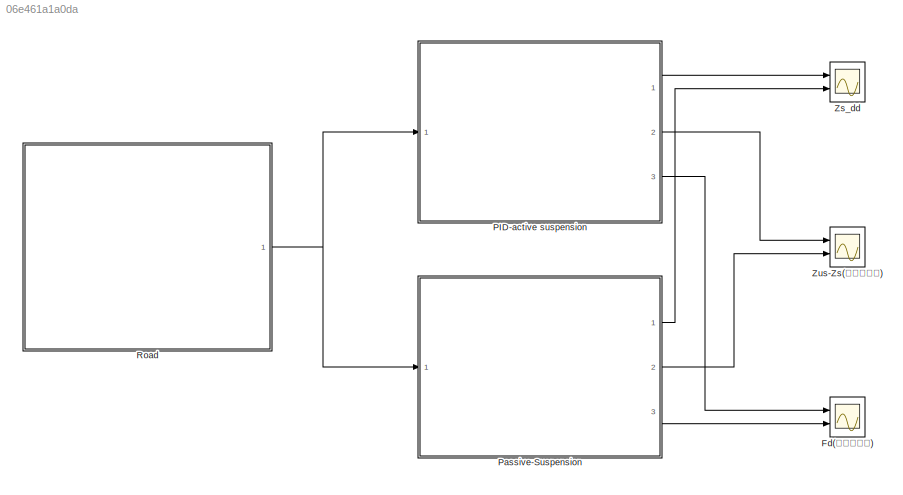
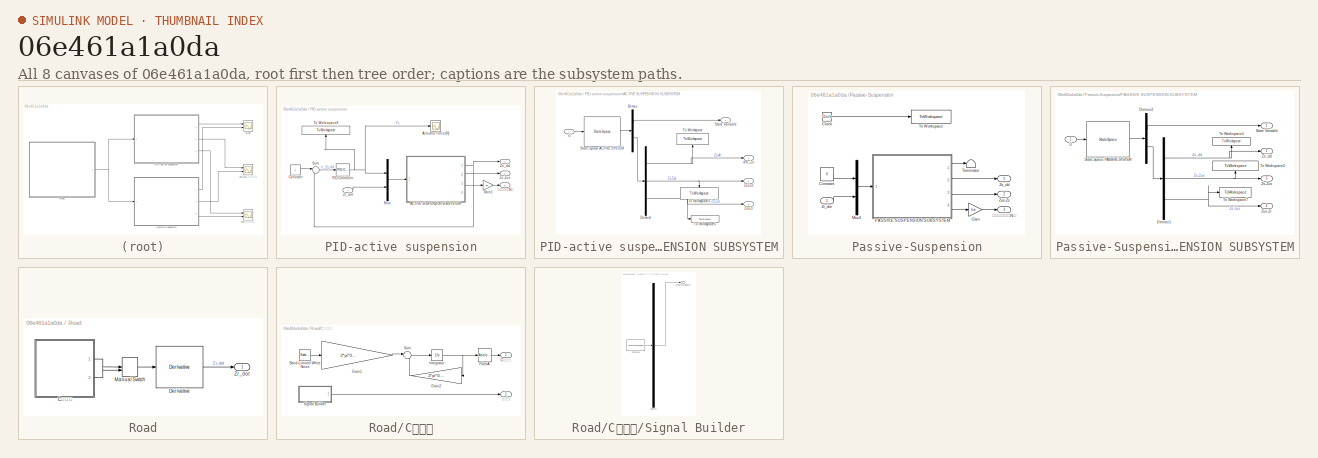
[diagram: thumbnail index - all 8 canvases of the model, root first then tree order]
MODEL slx_06e461a1a0da
KIND model
CONFIG AbsTol = auto
CONFIG EnableMultiTasking = off
CONFIG FixedStep = 0.001
CONFIG MaxStep = 0.001
CONFIG MinStep = auto
CONFIG RelTol = 1e-3
CONFIG SampleTimeConstraint = Unconstrained
CONFIG Solver = FixedStepAuto
CONFIG SolverName = FixedStepAuto
CONFIG StartTime = 0.0
CONFIG StopTime = 10.0
BLOCK [Scope] Fd(轮胎动载荷)
  Floating = off
  NumInputPorts = 2
  Ports = [2]
  ScopeSpecificationString = Simulink.scopes.TimeScopeBlockCfg('CurrentConfiguration', extmgr.ConfigurationSet(extmgr.Configuration('Core','General UI',true),extmgr.Configuration('Core','Source UI',true),extmgr.Configuration('Sources','WiredSimulink',true,'DataLoggingVariableName','ScopeData4'),extmgr.Configuration('Visuals','Time Domain',true,'SerializedDisplays',{struct('MinYLimReal','-2688.81802','MaxYLimReal','2641.93712'...<+1832ch>
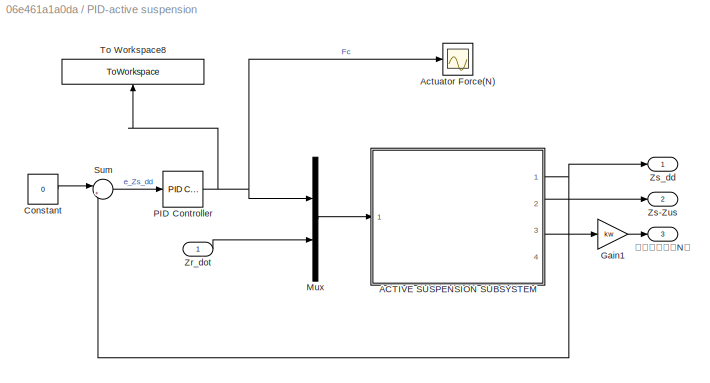
BLOCK [SubSystem] PID-active suspension
  Ports = [1, 3]
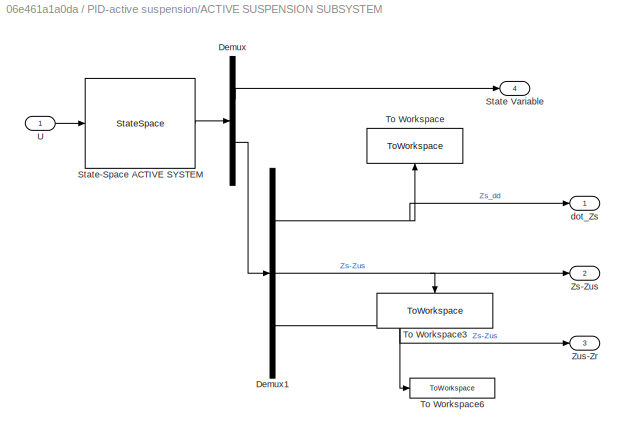
BLOCK [SubSystem] PID-active suspension/ACTIVE SUSPENSION SUBSYSTEM
  Ports = [1, 4]
BLOCK [Demux] PID-active suspension/ACTIVE SUSPENSION SUBSYSTEM/Demux
  Outputs = [4 3]
  Ports = [1, 2]
BLOCK [Demux] PID-active suspension/ACTIVE SUSPENSION SUBSYSTEM/Demux1
  Outputs = 3
  Ports = [1, 3]
BLOCK [Outport] PID-active suspension/ACTIVE SUSPENSION SUBSYSTEM/State Variable
  Port = 4
BLOCK [StateSpace] PID-active suspension/ACTIVE SUSPENSION SUBSYSTEM/State-Space ACTIVE SYSTEM
  A = A
  B = cat(2,B,E)
  C = cat(1,eye(4), C)
  D = cat(1,zeros(4,2),cat(2,D,T))
  InitialCondition = 0
  Ports = [1, 1]
BLOCK [ToWorkspace] PID-active suspension/ACTIVE SUSPENSION SUBSYSTEM/To Workspace
  FixptAsFi = on
  MaxDataPoints = inf
  Ports = [1]
  SampleTime = -1
  VariableName = Acceleration_ACT
BLOCK [ToWorkspace] PID-active suspension/ACTIVE SUSPENSION SUBSYSTEM/To Workspace3
  FixptAsFi = on
  MaxDataPoints = inf
  Ports = [1]
  SampleTime = -1
  VariableName = Suspension_Travel_ACT
BLOCK [ToWorkspace] PID-active suspension/ACTIVE SUSPENSION SUBSYSTEM/To Workspace6
  FixptAsFi = on
  MaxDataPoints = inf
  Ports = [1]
  SampleTime = -1
  VariableName = Deflection_ACT
BLOCK [Inport] PID-active suspension/ACTIVE SUSPENSION SUBSYSTEM/U
BLOCK [Outport] PID-active suspension/ACTIVE SUSPENSION SUBSYSTEM/Zs-Zus
  Port = 2
BLOCK [Outport] PID-active suspension/ACTIVE SUSPENSION SUBSYSTEM/Zus-Zr
  Port = 3
BLOCK [Outport] PID-active suspension/ACTIVE SUSPENSION SUBSYSTEM/dot_Zs
BLOCK [Scope] PID-active suspension/Actuator Force(N)
  Floating = off
  NumInputPorts = 1
  Ports = [1]
  ScopeSpecificationString = Simulink.scopes.TimeScopeBlockCfg('CurrentConfiguration', extmgr.ConfigurationSet(extmgr.Configuration('Core','General UI',true),extmgr.Configuration('Core','Source UI',true),extmgr.Configuration('Sources','WiredSimulink',true,'DataLoggingVariableName','ScopeData3'),extmgr.Configuration('Visuals','Time Domain',true,'SerializedDisplays',{struct('MinYLimReal','-2744.5003','MaxYLimReal','2779.33912',...<+1522ch>
BLOCK [Constant] PID-active suspension/Constant
  Value = 0
BLOCK [Gain] PID-active suspension/Gain1
  Gain = kw
BLOCK [Mux] PID-active suspension/Mux
  DisplayOption = bar
  Inputs = 2
  Ports = [2, 1]
BLOCK [Reference] PID-active suspension/PID Controller  REF=simulink/Continuous/PID Controller
  Ports = [1, 1]
  SourceBlock = simulink/Continuous/PID Controller
  SourceType = PID 1dof
BLOCK [Sum] PID-active suspension/Sum
  Inputs = |+-
  Ports = [2, 1]
BLOCK [ToWorkspace] PID-active suspension/To Workspace8
  FixptAsFi = on
  MaxDataPoints = inf
  Ports = [1]
  SampleTime = -1
  VariableName = ACTUATOR_FORCE
BLOCK [Inport] PID-active suspension/Zr_dot
BLOCK [Outport] PID-active suspension/Zs-Zus
  Port = 2
BLOCK [Outport] PID-active suspension/Zs_dd
BLOCK [Outport] PID-active suspension/轮胎动载荷（N）
  Port = 3
BLOCK [SubSystem] Passive-Suspension
  Ports = [1, 3]
BLOCK [Clock] Passive-Suspension/Clock
BLOCK [Constant] Passive-Suspension/Constant
  Value = 0
BLOCK [Gain] Passive-Suspension/Gain
  Gain = kw
BLOCK [Mux] Passive-Suspension/Mux2
  DisplayOption = bar
  Inputs = 2
  Ports = [2, 1]
BLOCK [SubSystem] Passive-Suspension/PASSIVE SUSPENSION SUBSYSTEM
  Ports = [1, 4]
BLOCK [Demux] Passive-Suspension/PASSIVE SUSPENSION SUBSYSTEM/Demux1
  Outputs = 3
  Ports = [1, 3]
BLOCK [Demux] Passive-Suspension/PASSIVE SUSPENSION SUBSYSTEM/Demux2
  Outputs = [4 3]
  Ports = [1, 2]
BLOCK [Outport] Passive-Suspension/PASSIVE SUSPENSION SUBSYSTEM/State Variable
BLOCK [StateSpace] Passive-Suspension/PASSIVE SUSPENSION SUBSYSTEM/State-Space PASSIVE SYSTEM
  A = A
  B = cat(2,B,E)
  C = cat(1,eye(4), C)
  D = cat(1,zeros(4,2),cat(2,D,T))
  InitialCondition = 0
  Ports = [1, 1]
BLOCK [ToWorkspace] Passive-Suspension/PASSIVE SUSPENSION SUBSYSTEM/To Workspace1
  FixptAsFi = on
  MaxDataPoints = inf
  Ports = [1]
  SampleTime = -1
  VariableName = Acceleration_PAS
BLOCK [ToWorkspace] Passive-Suspension/PASSIVE SUSPENSION SUBSYSTEM/To Workspace2
  FixptAsFi = on
  MaxDataPoints = inf
  Ports = [1]
  SampleTime = -1
  VariableName = Suspension_Travel_PAS
BLOCK [ToWorkspace] Passive-Suspension/PASSIVE SUSPENSION SUBSYSTEM/To Workspace7
  FixptAsFi = on
  MaxDataPoints = inf
  Ports = [1]
  SampleTime = -1
  VariableName = Deflection_PAS
BLOCK [Inport] Passive-Suspension/PASSIVE SUSPENSION SUBSYSTEM/U
BLOCK [Outport] Passive-Suspension/PASSIVE SUSPENSION SUBSYSTEM/Zs-Zus
  Port = 3
BLOCK [Outport] Passive-Suspension/PASSIVE SUSPENSION SUBSYSTEM/Zs_dd
  Port = 2
BLOCK [Outport] Passive-Suspension/PASSIVE SUSPENSION SUBSYSTEM/Zus-Zr
  Port = 4
BLOCK [Terminator] Passive-Suspension/Terminator
BLOCK [ToWorkspace] Passive-Suspension/To Workspace
  FixptAsFi = on
  MaxDataPoints = inf
  Ports = [1]
  SampleTime = -1
  VariableName = Time
BLOCK [Inport] Passive-Suspension/Zr_dot
BLOCK [Outport] Passive-Suspension/Zs_dd
BLOCK [Outport] Passive-Suspension/Zus-Zs
  Port = 2
BLOCK [Outport] Passive-Suspension/轮胎动载荷（N）
  Port = 3
BLOCK [SubSystem] Road
  Ports = [0, 1]
BLOCK [SubSystem] Road/C级路面
  Ports = [0, 2]
BLOCK [Reference] Road/C级路面/Band-Limited White Noise  REF=simulink/Sources/Band-Limited
White Noise
  Ports = [0, 1]
  SourceBlock = simulink/Sources/Band-Limited\nWhite Noise
  SourceType = Band-Limited White Noise.
BLOCK [Outport] Road/C级路面/C级路面
  VectorParamsAs1DForOutWhenUnconnected = off
BLOCK [Reference] Road/C级路面/FilterA  REF=dsparch4/Analog
Filter Design
  Ports = [1, 1]
  SourceBlock = dsparch4/Analog\nFilter Design
  SourceType = Analog Filter Design
BLOCK [Gain] Road/C级路面/Gain1
  Gain = 2*pi*0.1*sqrt(256e-6*60/3.6)
BLOCK [Gain] Road/C级路面/Gain2
  Gain = 2*pi*0.011*60/3.6
BLOCK [Integrator] Road/C级路面/Integrator
  Ports = [1, 1]
BLOCK [SubSystem] Road/C级路面/Signal Builder
  ClipboardFcn = sigbuilder_block('clipboard');
  CloseFcn = sigbuilder_block('close');
  ContinueFcn = sigbuilder_block('continue');
  CopyFcn = sigbuilder_block('copy');
  DeleteFcn = sigbuilder_block('delete');
  LoadFcn = sigbuilder_block('load');
  MaskHideContents = on
  ModelCloseFcn = sigbuilder_block('modelClose');
  NameChangeFcn = sigbuilder_block('namechange');
  OpenFcn = sigbuilder_block('open',[476.5 112.5 550.5 400 ]);
  PauseFcn = sigbuilder_block('pause');
  Ports = [0, 1]
  PreSaveFcn = sigbuilder_block('preSave');
  StartFcn = sigbuilder_block('start');
  StopFcn = sigbuilder_block('stop');
  Tag = STV Subsys
BLOCK [Demux] Road/C级路面/Signal Builder/Demux
  DisplayOption = none
  Outputs = 1
  Ports = [1, 1]
  Tag = STV Demux
BLOCK [FromWorkspace] Road/C级路面/Signal Builder/FromWs
  Tag = STV FromWs
  VariableName = tuvar
BLOCK [Outport] Road/C级路面/Signal Builder/Imported_Signal 1
  Tag = STV Outport
  VectorParamsAs1DForOutWhenUnconnected = off
BLOCK [Sum] Road/C级路面/Sum
  Inputs = |+-
  Ports = [2, 1]
BLOCK [Outport] Road/C级路面/减速带
  Port = 2
  VectorParamsAs1DForOutWhenUnconnected = off
BLOCK [Derivative] Road/Derivative
BLOCK [ManualSwitch] Road/Manual Switch
BLOCK [Outport] Road/Zr_dot
BLOCK [Scope] Zs_dd
  Floating = off
  NumInputPorts = 2
  Ports = [2]
  ScopeSpecificationString = Simulink.scopes.TimeScopeBlockCfg('CurrentConfiguration', extmgr.ConfigurationSet(extmgr.Configuration('Core','General UI',true),extmgr.Configuration('Core','Source UI',true),extmgr.Configuration('Sources','WiredSimulink',true,'DataLoggingVariableName','ScopeData4'),extmgr.Configuration('Visuals','Time Domain',true,'SerializedDisplays',{struct('MinYLimReal','-4.75423','MaxYLimReal','4.83229','YLab...<+1682ch>
BLOCK [Scope] Zus-Zs(悬架动挠度)
  Floating = off
  NumInputPorts = 2
  Ports = [2]
  ScopeSpecificationString = Simulink.scopes.TimeScopeBlockCfg('CurrentConfiguration', extmgr.ConfigurationSet(extmgr.Configuration('Core','General UI',true),extmgr.Configuration('Core','Source UI',true),extmgr.Configuration('Sources','WiredSimulink',true,'DataLoggingVariableName','ScopeData1'),extmgr.Configuration('Visuals','Time Domain',true,'SerializedDisplays',{struct('MinYLimReal','-0.03659','MaxYLimReal','0.0381','YLabe...<+1546ch>
NET PID-active suspension/ACTIVE SUSPENSION SUBSYSTEM/Demux1:1 -> PID-active suspension/ACTIVE SUSPENSION SUBSYSTEM/To Workspace:1, PID-active suspension/ACTIVE SUSPENSION SUBSYSTEM/dot_Zs:1
NET PID-active suspension/ACTIVE SUSPENSION SUBSYSTEM/Demux1:2 -> PID-active suspension/ACTIVE SUSPENSION SUBSYSTEM/To Workspace3:1, PID-active suspension/ACTIVE SUSPENSION SUBSYSTEM/Zs-Zus:1
NET PID-active suspension/ACTIVE SUSPENSION SUBSYSTEM/Demux1:3 -> PID-active suspension/ACTIVE SUSPENSION SUBSYSTEM/To Workspace6:1, PID-active suspension/ACTIVE SUSPENSION SUBSYSTEM/Zus-Zr:1
LINE PID-active suspension/ACTIVE SUSPENSION SUBSYSTEM/Demux:1 -> PID-active suspension/ACTIVE SUSPENSION SUBSYSTEM/State Variable:1
LINE PID-active suspension/ACTIVE SUSPENSION SUBSYSTEM/Demux:2 -> PID-active suspension/ACTIVE SUSPENSION SUBSYSTEM/Demux1:1
LINE PID-active suspension/ACTIVE SUSPENSION SUBSYSTEM/State-Space ACTIVE SYSTEM:1 -> PID-active suspension/ACTIVE SUSPENSION SUBSYSTEM/Demux:1
LINE PID-active suspension/ACTIVE SUSPENSION SUBSYSTEM/U:1 -> PID-active suspension/ACTIVE SUSPENSION SUBSYSTEM/State-Space ACTIVE SYSTEM:1
NET PID-active suspension/ACTIVE SUSPENSION SUBSYSTEM:1 -> PID-active suspension/Sum:2, PID-active suspension/Zs_dd:1
LINE PID-active suspension/ACTIVE SUSPENSION SUBSYSTEM:2 -> PID-active suspension/Zs-Zus:1
LINE PID-active suspension/ACTIVE SUSPENSION SUBSYSTEM:3 -> PID-active suspension/Gain1:1
LINE PID-active suspension/Constant:1 -> PID-active suspension/Sum:1
LINE PID-active suspension/Gain1:1 -> PID-active suspension/轮胎动载荷（N）:1
LINE PID-active suspension/Mux:1 -> PID-active suspension/ACTIVE SUSPENSION SUBSYSTEM:1
NET PID-active suspension/PID Controller:1 -> PID-active suspension/Actuator Force(N):1, PID-active suspension/Mux:1, PID-active suspension/To Workspace8:1
LINE PID-active suspension/Sum:1 -> PID-active suspension/PID Controller:1
LINE PID-active suspension/Zr_dot:1 -> PID-active suspension/Mux:2
LINE PID-active suspension:1 -> Zs_dd:1
LINE PID-active suspension:2 -> Zus-Zs(悬架动挠度):1
LINE PID-active suspension:3 -> Fd(轮胎动载荷):1
LINE Passive-Suspension/Clock:1 -> Passive-Suspension/To Workspace:1
LINE Passive-Suspension/Constant:1 -> Passive-Suspension/Mux2:1
LINE Passive-Suspension/Gain:1 -> Passive-Suspension/轮胎动载荷（N）:1
LINE Passive-Suspension/Mux2:1 -> Passive-Suspension/PASSIVE SUSPENSION SUBSYSTEM:1
NET Passive-Suspension/PASSIVE SUSPENSION SUBSYSTEM/Demux1:1 -> Passive-Suspension/PASSIVE SUSPENSION SUBSYSTEM/To Workspace1:1, Passive-Suspension/PASSIVE SUSPENSION SUBSYSTEM/Zs_dd:1
NET Passive-Suspension/PASSIVE SUSPENSION SUBSYSTEM/Demux1:2 -> Passive-Suspension/PASSIVE SUSPENSION SUBSYSTEM/To Workspace2:1, Passive-Suspension/PASSIVE SUSPENSION SUBSYSTEM/Zs-Zus:1
NET Passive-Suspension/PASSIVE SUSPENSION SUBSYSTEM/Demux1:3 -> Passive-Suspension/PASSIVE SUSPENSION SUBSYSTEM/To Workspace7:1, Passive-Suspension/PASSIVE SUSPENSION SUBSYSTEM/Zus-Zr:1
LINE Passive-Suspension/PASSIVE SUSPENSION SUBSYSTEM/Demux2:1 -> Passive-Suspension/PASSIVE SUSPENSION SUBSYSTEM/State Variable:1
LINE Passive-Suspension/PASSIVE SUSPENSION SUBSYSTEM/Demux2:2 -> Passive-Suspension/PASSIVE SUSPENSION SUBSYSTEM/Demux1:1
LINE Passive-Suspension/PASSIVE SUSPENSION SUBSYSTEM/State-Space PASSIVE SYSTEM:1 -> Passive-Suspension/PASSIVE SUSPENSION SUBSYSTEM/Demux2:1
LINE Passive-Suspension/PASSIVE SUSPENSION SUBSYSTEM/U:1 -> Passive-Suspension/PASSIVE SUSPENSION SUBSYSTEM/State-Space PASSIVE SYSTEM:1
LINE Passive-Suspension/PASSIVE SUSPENSION SUBSYSTEM:1 -> Passive-Suspension/Terminator:1
LINE Passive-Suspension/PASSIVE SUSPENSION SUBSYSTEM:2 -> Passive-Suspension/Zs_dd:1
LINE Passive-Suspension/PASSIVE SUSPENSION SUBSYSTEM:3 -> Passive-Suspension/Zus-Zs:1
LINE Passive-Suspension/PASSIVE SUSPENSION SUBSYSTEM:4 -> Passive-Suspension/Gain:1
LINE Passive-Suspension/Zr_dot:1 -> Passive-Suspension/Mux2:2
LINE Passive-Suspension:1 -> Zs_dd:2
LINE Passive-Suspension:2 -> Zus-Zs(悬架动挠度):2
LINE Passive-Suspension:3 -> Fd(轮胎动载荷):2
LINE Road/C级路面/Band-Limited White Noise:1 -> Road/C级路面/Gain1:1
LINE Road/C级路面/FilterA:1 -> Road/C级路面/C级路面:1
LINE Road/C级路面/Gain1:1 -> Road/C级路面/Sum:1
LINE Road/C级路面/Gain2:1 -> Road/C级路面/Sum:2
NET Road/C级路面/Integrator:1 -> Road/C级路面/FilterA:1, Road/C级路面/Gain2:1
LINE Road/C级路面/Signal Builder:1 -> Road/C级路面/减速带:1
LINE Road/C级路面/Sum:1 -> Road/C级路面/Integrator:1
LINE Road/C级路面:1 -> Road/Manual Switch:1
LINE Road/C级路面:2 -> Road/Manual Switch:2
LINE Road/Derivative:1 -> Road/Zr_dot:1
LINE Road/Manual Switch:1 -> Road/Derivative:1
NET Road:1 -> PID-active suspension:1, Passive-Suspension:1
note: NET lines group one-source signal fan-out (src -> all destinations, sorted); 1:1 wires keep LINE
